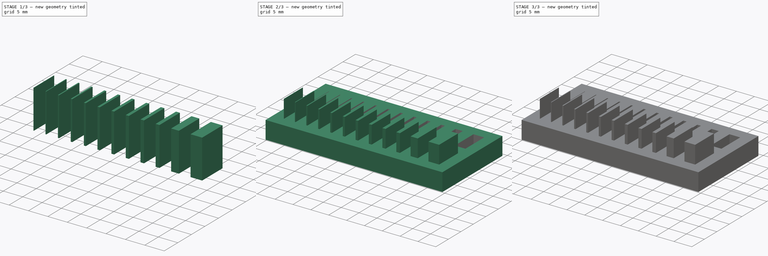
[diagram: build sequence overview — one tinted view per stage of 3, left to right]
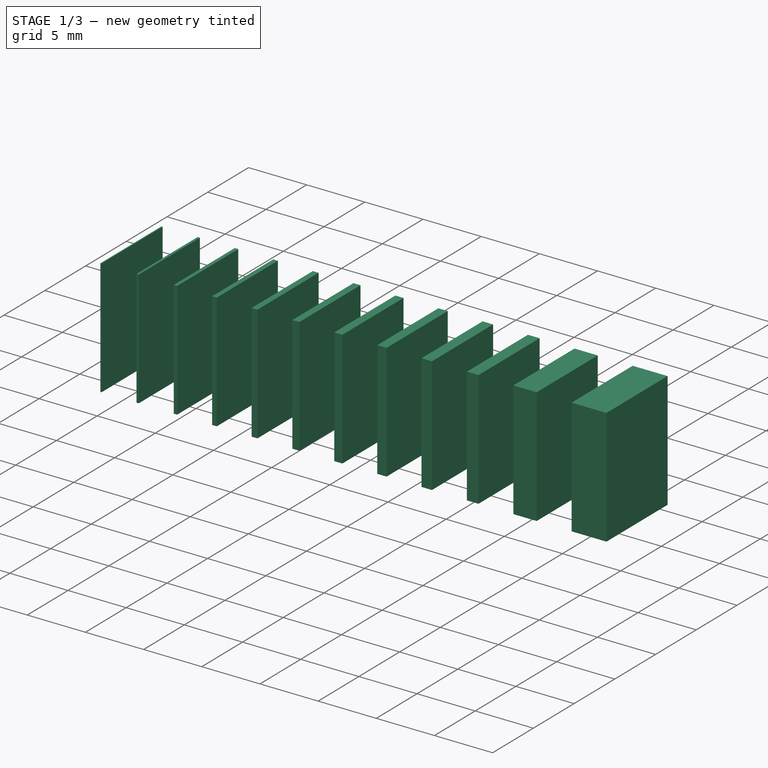
[diagram: stage 1 of 3 — iso view after this stage's code; geometry added in this stage tinted green]
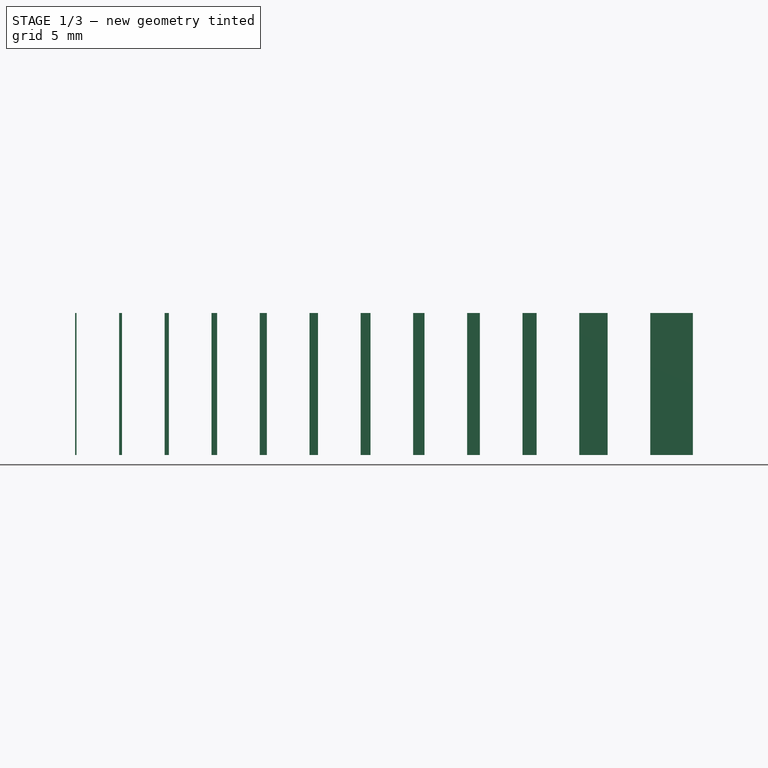
[diagram: stage 1 of 3 — front view after this stage's code; geometry added in this stage tinted green]
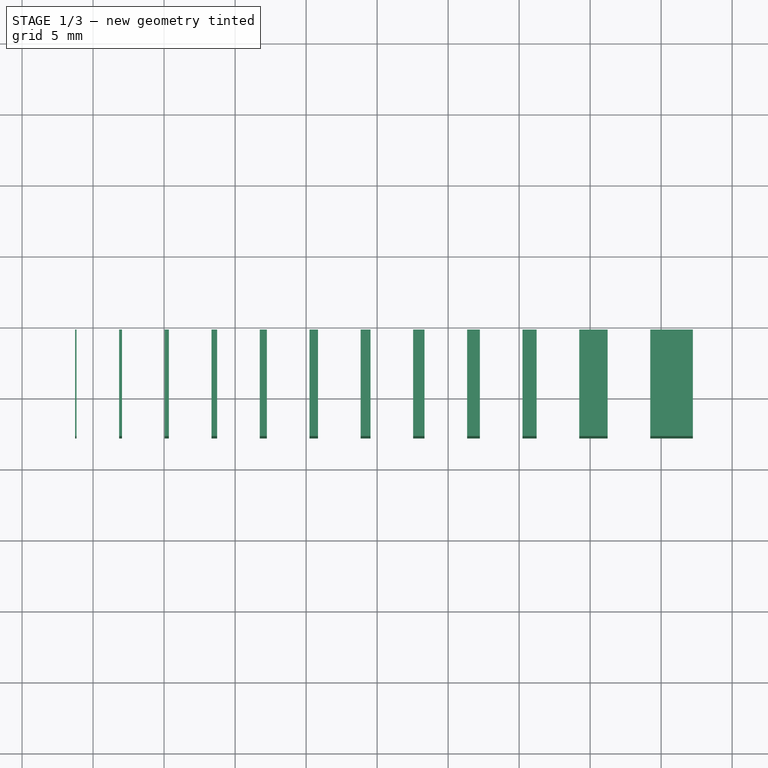
[diagram: stage 1 of 3 — top view after this stage's code; geometry added in this stage tinted green]
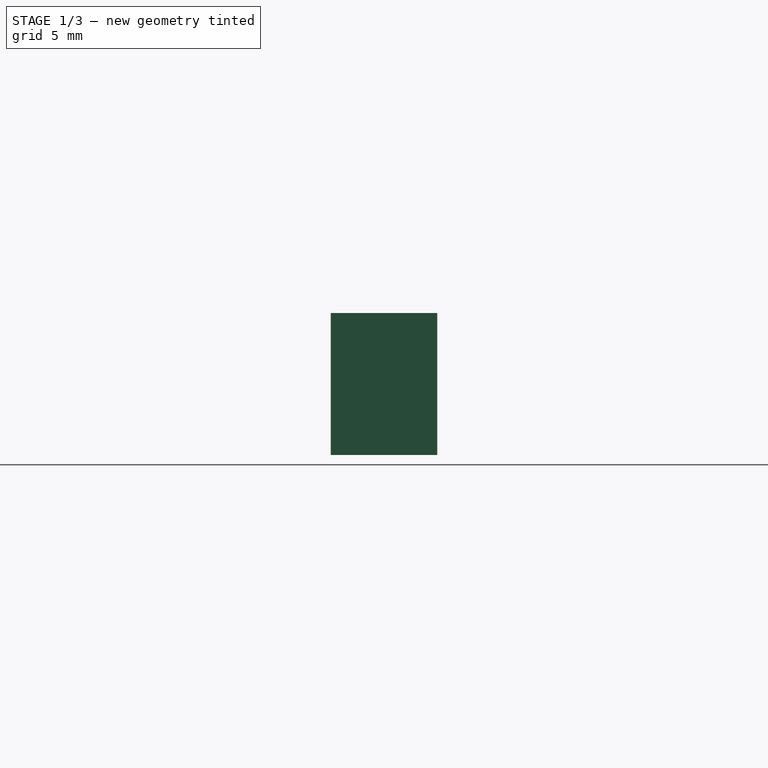
[diagram: stage 1 of 3 — right view after this stage's code; geometry added in this stage tinted green]
FCSTD DOCUMENT  (FreeCAD 0.18.3R)
Label: thickness
License: All rights reserved
LicenseURL: http://en.wikipedia.org/wiki/All_rights_reserved
objects: Part::Extrusion×3, Sketcher::SketchObject×2, Part::Cut×2, Part::Fuse×1, Part::FeaturePython×1, Part::Part2DObjectPython×1
note: 10 computed .brp shape members not serialized (recipe doc carries the construction recipe); baked Part::Feature solids carry a one-line shape summary decoded from their .brp

FEATURE [Part::Extrusion] Extrude001  label="walls"
  Base = -> Sketch
  Dir = (0,0,1)
  DirMode = 2
  FaceMakerClass = Part::FaceMakerBullseye
  LengthFwd = 10
  LengthRev = 0
  Solid = true
  Symmetric = false
FEATURE [Part::FeaturePython] Clone  label="cuts"  # Draft clone (typed FeaturePython)
  AttacherType = Attacher::AttachEngine3D
  Fuse = false
  Objects = -> [Extrude001]
  Placement = pos=(0,10.5,0) rot=(0,0,1;0rad)
  Scale = (1,1,1)
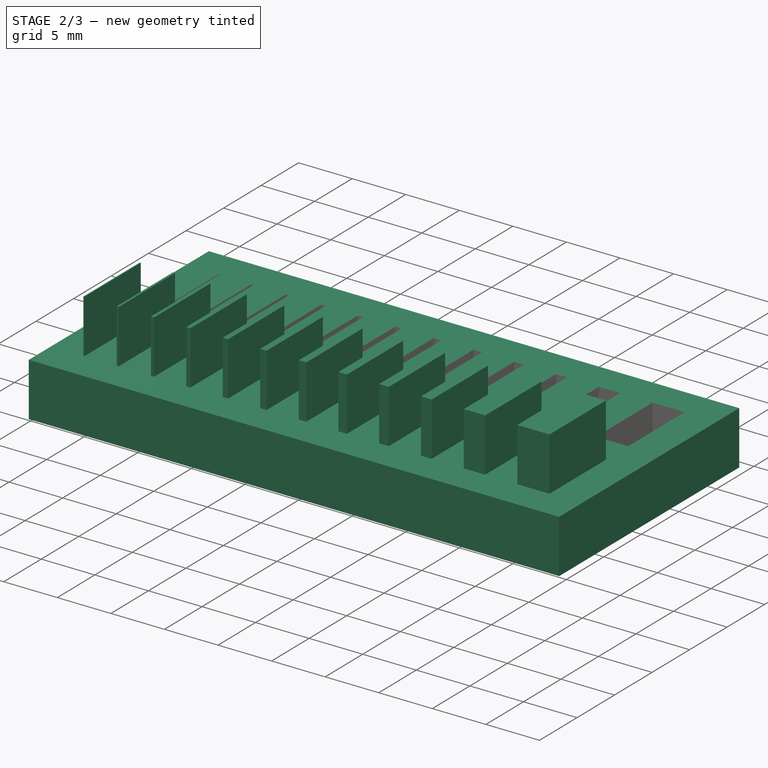
[diagram: stage 2 of 3 — iso view after this stage's code; geometry added in this stage tinted green]
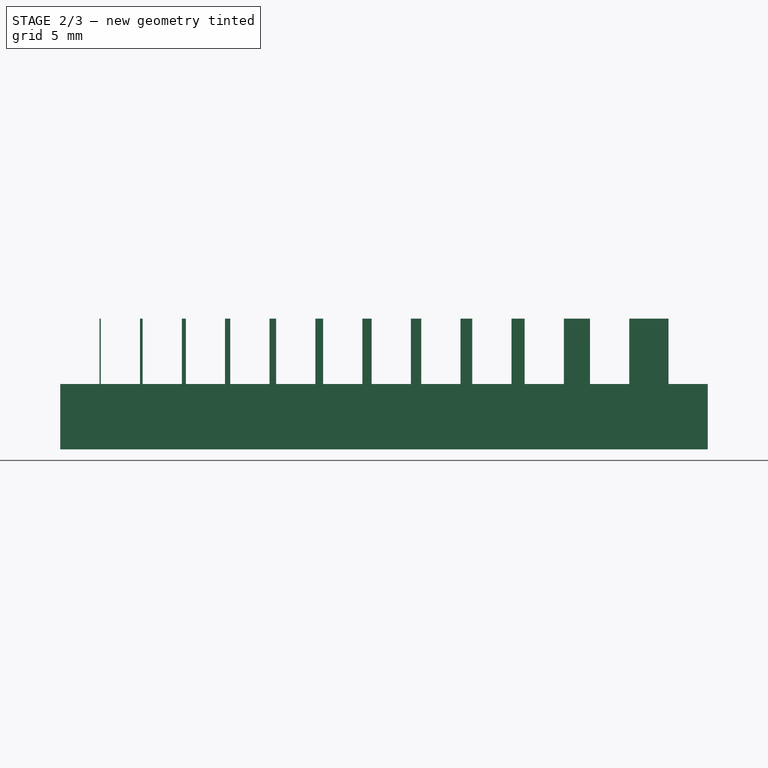
[diagram: stage 2 of 3 — front view after this stage's code; geometry added in this stage tinted green]
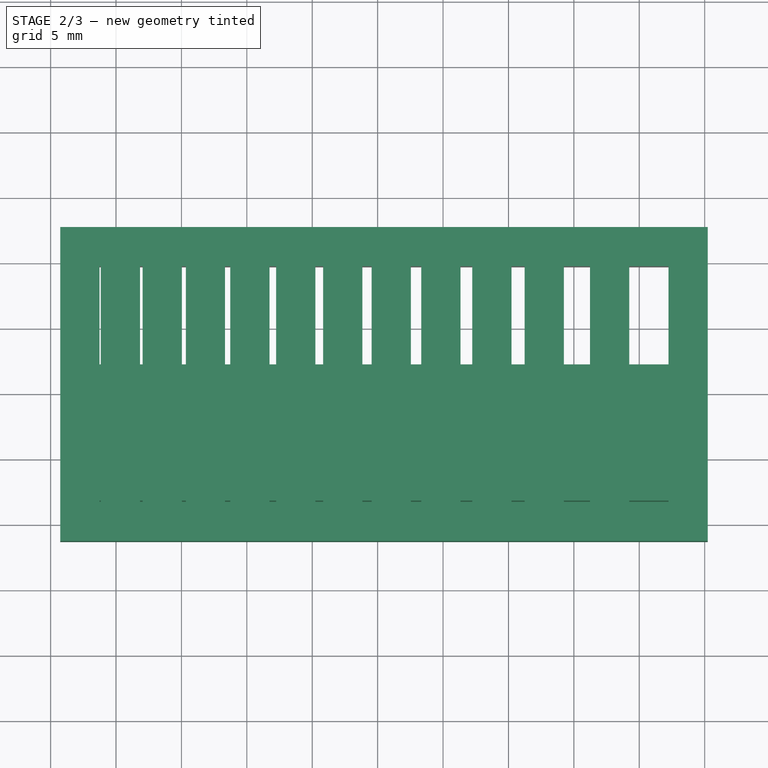
[diagram: stage 2 of 3 — top view after this stage's code; geometry added in this stage tinted green]
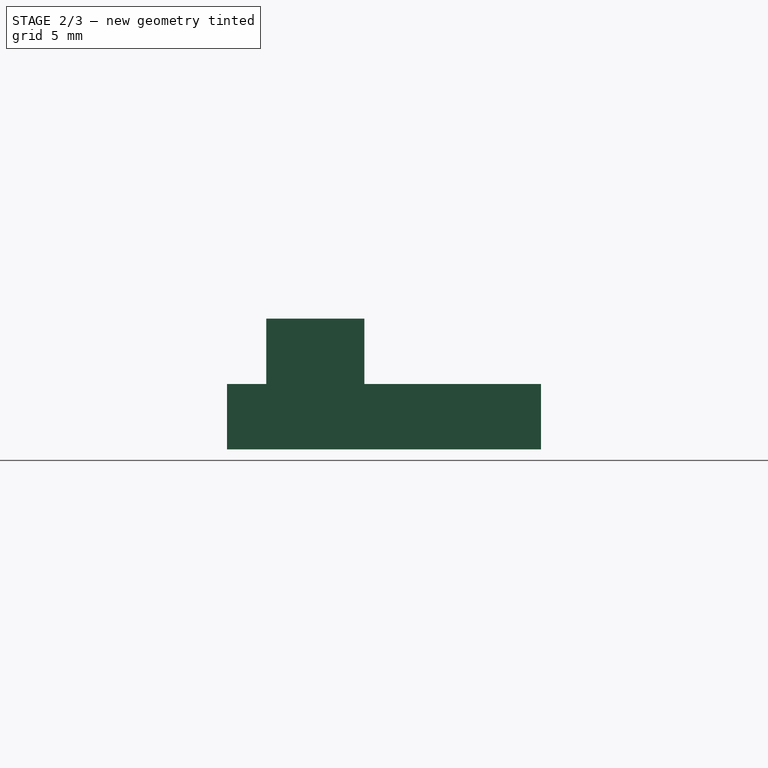
[diagram: stage 2 of 3 — right view after this stage's code; geometry added in this stage tinted green]
FEATURE [Sketcher::SketchObject] Sketch  label="walls sketch"
  sketch-geometry (48):
    g0: LineSegment StartX=-15.7646 StartY=14.21 StartZ=0 EndX=-12.7646 EndY=14.21 EndZ=0
    g1: LineSegment StartX=-12.7646 StartY=14.21 StartZ=0 EndX=-12.7646 EndY=6.70998 EndZ=0
    g2: LineSegment StartX=-12.7646 StartY=6.70998 StartZ=0 EndX=-15.7646 EndY=6.70998 EndZ=0
    g3: LineSegment StartX=-15.7646 StartY=6.70998 StartZ=0 EndX=-15.7646 EndY=14.21 EndZ=0
    g4: LineSegment StartX=-20.7646 StartY=14.21 StartZ=0 EndX=-18.7646 EndY=14.21 EndZ=0
    g5: LineSegment StartX=-18.7646 StartY=14.21 StartZ=0 EndX=-18.7646 EndY=6.70998 EndZ=0
    g6: LineSegment StartX=-18.7646 StartY=6.70998 StartZ=0 EndX=-20.7646 EndY=6.70998 EndZ=0
    g7: LineSegment StartX=-20.7646 StartY=6.70998 StartZ=0 EndX=-20.7646 EndY=14.21 EndZ=0
    g8: LineSegment StartX=-24.7646 StartY=14.21 StartZ=0 EndX=-23.7646 EndY=14.21 EndZ=0
    g9: LineSegment StartX=-23.7646 StartY=14.21 StartZ=0 EndX=-23.7646 EndY=6.70998 EndZ=0
    g10: LineSegment StartX=-23.7646 StartY=6.70998 StartZ=0 EndX=-24.7646 EndY=6.70998 EndZ=0
    g11: LineSegment StartX=-24.7646 StartY=6.70998 StartZ=0 EndX=-24.7646 EndY=14.21 EndZ=0
    g12: LineSegment StartX=-28.6646 StartY=14.21 StartZ=0 EndX=-27.7646 EndY=14.21 EndZ=0
    g13: LineSegment StartX=-27.7646 StartY=14.21 StartZ=0 EndX=-27.7646 EndY=6.70998 EndZ=0
    g14: LineSegment StartX=-27.7646 StartY=6.70998 StartZ=0 EndX=-28.6646 EndY=6.70998 EndZ=0
    g15: LineSegment StartX=-28.6646 StartY=6.70998 StartZ=0 EndX=-28.6646 EndY=14.21 EndZ=0
    g16: LineSegment StartX=-32.4646 StartY=14.21 StartZ=0 EndX=-31.6646 EndY=14.21 EndZ=0
    g17: LineSegment StartX=-31.6646 StartY=14.21 StartZ=0 EndX=-31.6646 EndY=6.70998 EndZ=0
    g18: LineSegment StartX=-31.6646 StartY=6.70998 StartZ=0 EndX=-32.4646 EndY=6.70998 EndZ=0
    g19: LineSegment StartX=-32.4646 StartY=6.70998 StartZ=0 EndX=-32.4646 EndY=14.21 EndZ=0
    g20: LineSegment StartX=-36.1646 StartY=14.21 StartZ=0 EndX=-35.4646 EndY=14.21 EndZ=0
    g21: LineSegment StartX=-35.4646 StartY=14.21 StartZ=0 EndX=-35.4646 EndY=6.70998 EndZ=0
    g22: LineSegment StartX=-35.4646 StartY=6.70998 StartZ=0 EndX=-36.1646 EndY=6.70998 EndZ=0
    g23: LineSegment StartX=-36.1646 StartY=6.70998 StartZ=0 EndX=-36.1646 EndY=14.21 EndZ=0
    g24: LineSegment StartX=-39.7646 StartY=14.21 StartZ=0 EndX=-39.1646 EndY=14.21 EndZ=0
    g25: LineSegment StartX=-39.1646 StartY=14.21 StartZ=0 EndX=-39.1646 EndY=6.70998 EndZ=0
    g26: LineSegment StartX=-39.1646 StartY=6.70998 StartZ=0 EndX=-39.7646 EndY=6.70998 EndZ=0
    g27: LineSegment StartX=-39.7646 StartY=6.70998 StartZ=0 EndX=-39.7646 EndY=14.21 EndZ=0
    g28: LineSegment StartX=-43.2646 StartY=14.21 StartZ=0 EndX=-42.7646 EndY=14.21 EndZ=0
    g29: LineSegment StartX=-42.7646 StartY=14.21 StartZ=0 EndX=-42.7646 EndY=6.70998 EndZ=0
    g30: LineSegment StartX=-42.7646 StartY=6.70998 StartZ=0 EndX=-43.2646 EndY=6.70998 EndZ=0
    g31: LineSegment StartX=-43.2646 StartY=6.70998 StartZ=0 EndX=-43.2646 EndY=14.21 EndZ=0
    g32: LineSegment StartX=-46.6646 StartY=14.21 StartZ=0 EndX=-46.2646 EndY=14.21 EndZ=0
    g33: LineSegment StartX=-46.2646 StartY=14.21 StartZ=0 EndX=-46.2646 EndY=6.70998 EndZ=0
    g34: LineSegment StartX=-46.2646 StartY=6.70998 StartZ=0 EndX=-46.6646 EndY=6.70998 EndZ=0
    g35: LineSegment StartX=-46.6646 StartY=6.70998 StartZ=0 EndX=-46.6646 EndY=14.21 EndZ=0
    g36: LineSegment StartX=-49.9646 StartY=14.21 StartZ=0 EndX=-49.6646 EndY=14.21 EndZ=0
    g37: LineSegment StartX=-49.6646 StartY=14.21 StartZ=0 EndX=-49.6646 EndY=6.70998 EndZ=0
    g38: LineSegment StartX=-49.6646 StartY=6.70998 StartZ=0 EndX=-49.9646 EndY=6.70998 EndZ=0
    g39: LineSegment StartX=-49.9646 StartY=6.70998 StartZ=0 EndX=-49.9646 EndY=14.21 EndZ=0
    g40: LineSegment StartX=-53.1646 StartY=14.21 StartZ=0 EndX=-52.9646 EndY=14.21 EndZ=0
    g41: LineSegment StartX=-52.9646 StartY=14.21 StartZ=0 EndX=-52.9646 EndY=6.70998 EndZ=0
    g42: LineSegment StartX=-52.9646 StartY=6.70998 StartZ=0 EndX=-53.1646 EndY=6.70998 EndZ=0
    g43: LineSegment StartX=-53.1646 StartY=6.70998 StartZ=0 EndX=-53.1646 EndY=14.21 EndZ=0
    g44: LineSegment StartX=-56.2646 StartY=14.21 StartZ=0 EndX=-56.1646 EndY=14.21 EndZ=0
    g45: LineSegment StartX=-56.1646 StartY=14.21 StartZ=0 EndX=-56.1646 EndY=6.70998 EndZ=0
    g46: LineSegment StartX=-56.1646 StartY=6.70998 StartZ=0 EndX=-56.2646 EndY=6.70998 EndZ=0
    g47: LineSegment StartX=-56.2646 StartY=6.70998 StartZ=0 EndX=-56.2646 EndY=14.21 EndZ=0
  constraints (142):
    c: Coincident(g0,g1)
    c: Coincident(g1,g2)
    c: Coincident(g2,g3)
    c: Coincident(g3,g0)
    c: Horizontal(g0)
    c: Horizontal(g2)
    c: Vertical(g1)
    c: Vertical(g3)
    c: DistanceX(g0,g0) = 3
    c: Coincident(g4,g5)
    c: Coincident(g5,g6)
    c: Coincident(g6,g7)
    c: Coincident(g7,g4)
    c: Horizontal(g4)
    c: Horizontal(g6)
    c: Vertical(g5)
    c: Vertical(g7)
    c: Horizontal(g4,g0)
    c: Equal(g5,g1)
    c: DistanceX(g4,g0) = 3
    c: DistanceX(g4,g4) = 2
    c: Coincident(g8,g9)
    c: Coincident(g9,g10)
    c: Coincident(g10,g11)
    c: Coincident(g11,g8)
    c: Horizontal(g8)
    c: Horizontal(g10)
    c: Vertical(g9)
    c: Vertical(g11)
    c: Horizontal(g8,g4)
    c: Equal(g9,g5)
    c: DistanceX(g8,g4) = 3
    c: DistanceX(g8,g8) = 1
    c: Coincident(g12,g13)
    c: Coincident(g13,g14)
    c: Coincident(g14,g15)
    c: Coincident(g15,g12)
    c: Horizontal(g12)
    c: Horizontal(g14)
    c: Vertical(g13)
    c: Vertical(g15)
    c: Horizontal(g12,g8)
    c: Equal(g13,g9)
    c: DistanceX(g12,g8) = 3
    c: DistanceX(g12,g12) = 0.9
    c: Coincident(g16,g17)
    c: Coincident(g17,g18)
    c: Coincident(g18,g19)
    c: Coincident(g19,g16)
    c: Horizontal(g16)
    c: Horizontal(g18)
    c: Vertical(g17)
    c: Vertical(g19)
    c: Horizontal(g16,g12)
    c: DistanceX(g16,g12) = 3
    c: Equal(g17,g13)
    c: DistanceX(g16,g16) = 0.8
    c: Coincident(g20,g21)
    c: Coincident(g21,g22)
    c: Coincident(g22,g23)
    c: Coincident(g23,g20)
    c: Horizontal(g20)
    c: Horizontal(g22)
    c: Vertical(g21)
    c: Vertical(g23)
    c: Horizontal(g20,g16)
    c: Equal(g21,g17)
    c: DistanceX(g20,g16) = 3
    c: DistanceX(g20,g20) = 0.7
    c: DistanceY(g1,g0) = 7.5
    c: Coincident(g24,g25)
    c: Coincident(g25,g26)
    c: Coincident(g26,g27)
    c: Coincident(g27,g24)
    c: Horizontal(g24)
    c: Horizontal(g26)
    c: Vertical(g25)
    c: Vertical(g27)
    c: Horizontal(g24,g20)
    c: Equal(g25,g21)
    c: DistanceX(g24,g20) = 3
    c: DistanceX(g24,g24) = 0.6
    c: Coincident(g28,g29)
    c: Coincident(g29,g30)
    c: Coincident(g30,g31)
    c: Coincident(g31,g28)
    c: Horizontal(g28)
    c: Horizontal(g30)
    c: Vertical(g29)
    c: Vertical(g31)
    c: Horizontal(g28,g24)
    c: DistanceX(g28,g24) = 3
    c: Equal(g29,g25)
    c: DistanceX(g28,g28) = 0.5
    c: Coincident(g32,g33)
    c: Coincident(g33,g34)
    c: Coincident(g34,g35)
    c: Coincident(g35,g32)
    c: Horizontal(g32)
    c: Horizontal(g34)
    c: Vertical(g33)
    c: Vertical(g35)
    c: Coincident(g36,g37)
    c: Coincident(g37,g38)
    c: Coincident(g38,g39)
    c: Coincident(g39,g36)
    c: Horizontal(g36)
    c: Horizontal(g38)
    c: Vertical(g37)
    c: Vertical(g39)
    c: Coincident(g40,g41)
    c: Coincident(g41,g42)
    c: Coincident(g42,g43)
    c: Coincident(g43,g40)
    c: Horizontal(g40)
    c: Horizontal(g42)
    c: Vertical(g41)
    c: Vertical(g43)
    c: Coincident(g44,g45)
    c: Coincident(g45,g46)
    c: Coincident(g46,g47)
    c: Coincident(g47,g44)
    c: Horizontal(g44)
    c: Horizontal(g46)
    c: Vertical(g45)
    c: Vertical(g47)
    c: Horizontal(g32,g28)
    c: Horizontal(g36,g32)
    c: Horizontal(g40,g36)
    c: Horizontal(g44,g40)
    c: Equal(g33,g29)
    c: Equal(g37,g33)
    c: Equal(g41,g37)
    c: Equal(g45,g41)
    c: DistanceX(g33,g28) = 3
    c: DistanceX(g36,g32) = 3
    c: DistanceX(g40,g36) = 3
    c: DistanceX(g44,g40) = 3
    c: DistanceX(g32,g32) = 0.4
    c: DistanceX(g36,g36) = 0.3
    c: DistanceX(g40,g40) = 0.2
    c: DistanceX(g44,g44) = 0.1
FEATURE [Sketcher::SketchObject] Sketch002  label="border"
  ExternalGeometry = -> [Sketch]
  expr: Constraints[10] = 3 + 7.5 + 3 + 7.5
  sketch-geometry (4):
    g0: LineSegment StartX=-59.2646 StartY=27.71 StartZ=0 EndX=-9.76456 EndY=27.71 EndZ=0
    g1: LineSegment StartX=-9.76456 StartY=27.71 StartZ=0 EndX=-9.76456 EndY=3.70998 EndZ=0
    g2: LineSegment StartX=-9.76456 StartY=3.70998 StartZ=0 EndX=-59.2646 EndY=3.70998 EndZ=0
    g3: LineSegment StartX=-59.2646 StartY=3.70998 StartZ=0 EndX=-59.2646 EndY=27.71 EndZ=0
  constraints (11):
    c: Coincident(g0,g1)
    c: Coincident(g1,g2)
    c: Coincident(g2,g3)
    c: Coincident(g3,g0)
    c: Horizontal(g0)
    c: Horizontal(g2)
    c: Vertical(g3)
    c: DistanceX(g2,g-4) = 3
    c: DistanceY(g2,g-4) = 3
    c: DistanceX(g-5,g1) = 3
    c: DistanceY(g-5,g0) = 21
FEATURE [Part::Extrusion] Extrude  label="base"
  Base = -> Sketch002
  Dir = (0,0,1)
  DirMode = 2
  FaceMakerClass = Part::FaceMakerBullseye
  LengthFwd = 5
  LengthRev = 0
  Solid = true
  Symmetric = false
FEATURE [Part::Fuse] Fusion
  Base = -> Extrude
  Tool = -> Extrude001
FEATURE [Part::Cut] Cut
  Base = -> Fusion
  Tool = -> Clone
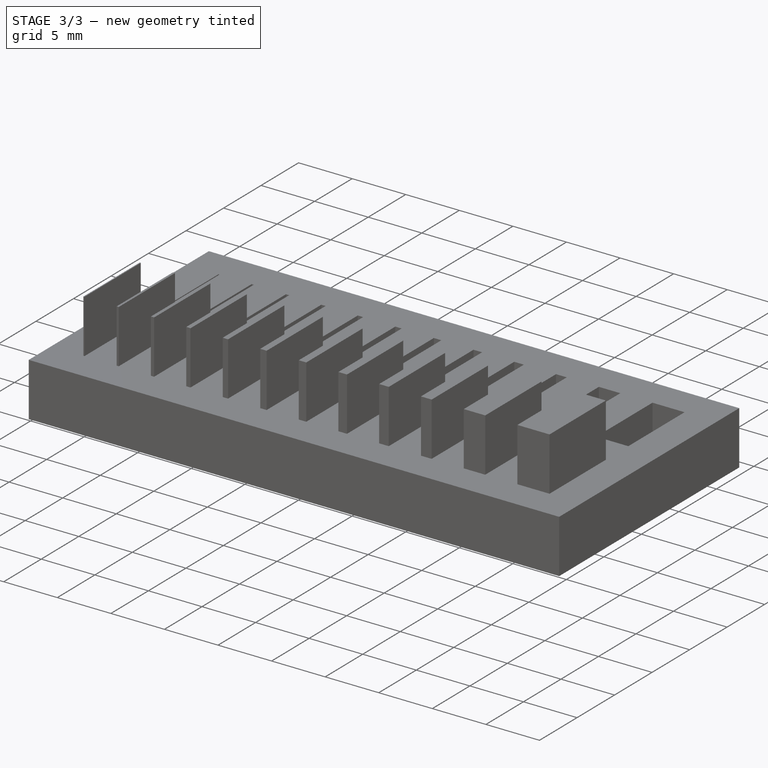
[diagram: stage 3 of 3 — iso view after this stage's code; geometry added in this stage tinted green]
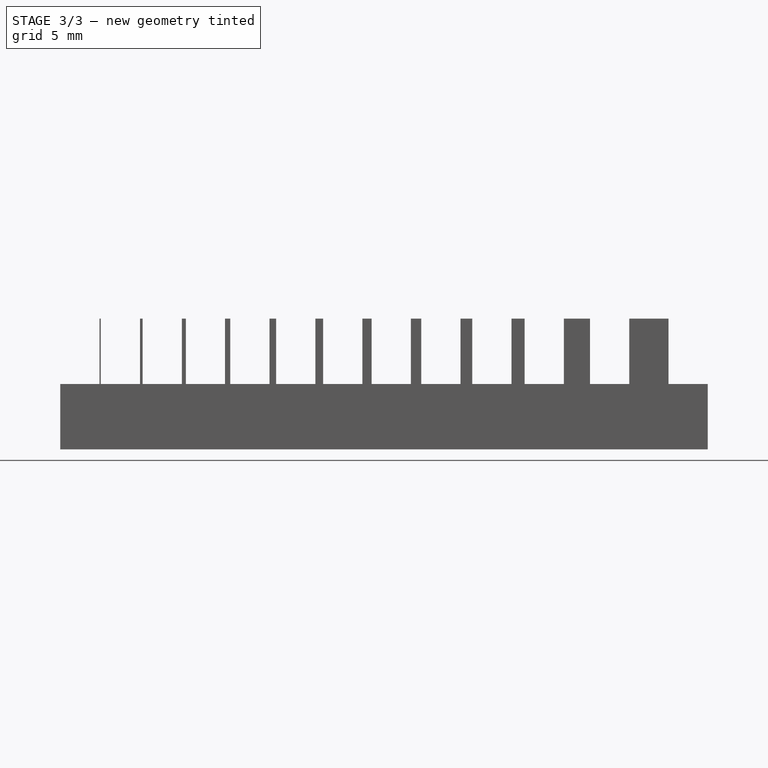
[diagram: stage 3 of 3 — front view after this stage's code; geometry added in this stage tinted green]
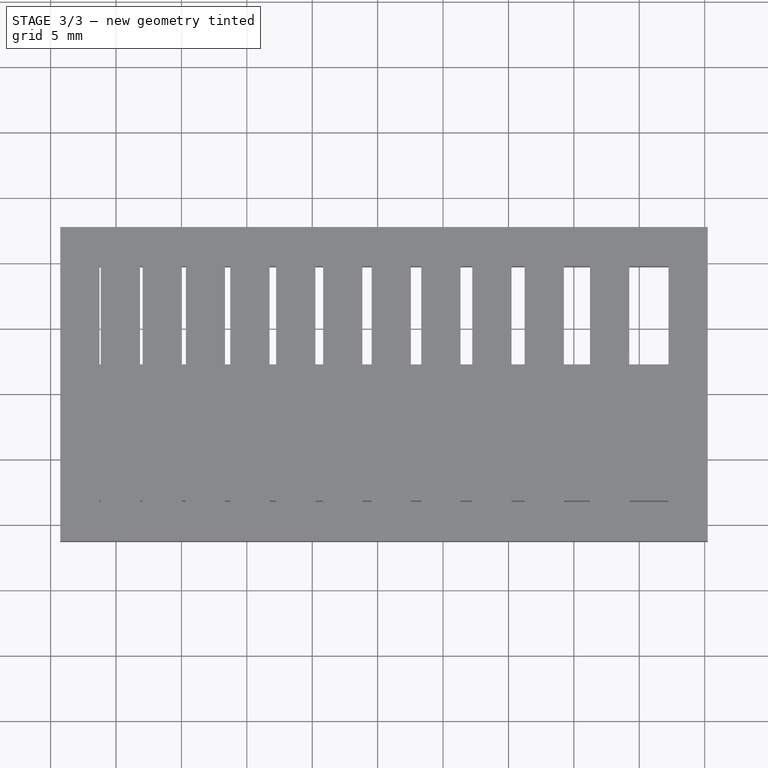
[diagram: stage 3 of 3 — top view after this stage's code; geometry added in this stage tinted green]
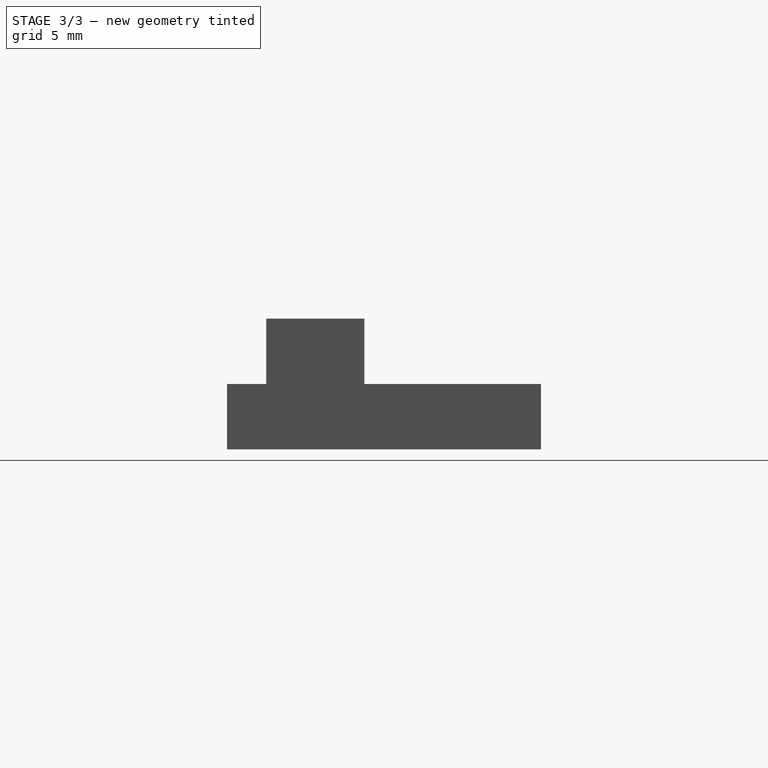
[diagram: stage 3 of 3 — right view after this stage's code; geometry added in this stage tinted green]
FEATURE [Part::Part2DObjectPython] ShapeString  # Draft 2D object (typed FeaturePython)
  FontFile = <userpath>/git/aws2/bin/fonts/Arial Bold.ttf
  Placement = pos=(-13,28,0.75) rot=(0,0.707107,0.707107;3.14159rad)
  Size = 3.5
  String = 3 2 1.9.8.7.6.5.4.3.2.1
  Support = -> [Cut]
  Tracking = 0
FEATURE [Part::Extrusion] Extrude002
  Base = -> ShapeString
  Dir = (1e-16,1,0)
  DirMode = 2
  FaceMakerClass = Part::FaceMakerBullseye
  LengthFwd = -1
  LengthRev = 0
  Solid = false
  Symmetric = false
FEATURE [Part::Cut] Cut001
  Base = -> Cut
  Tool = -> Extrude002
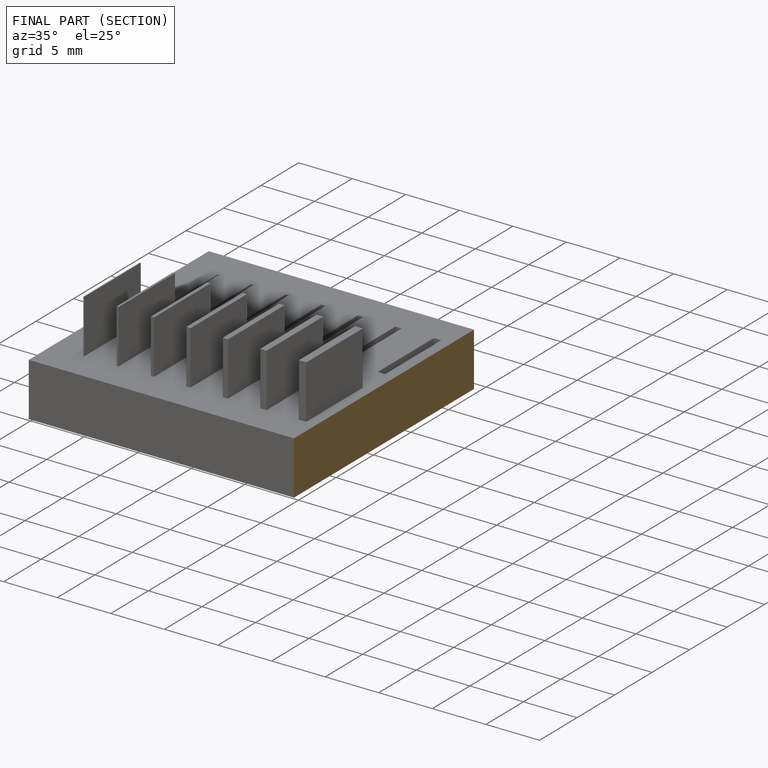
[diagram: finished part — half-section view (interior)]
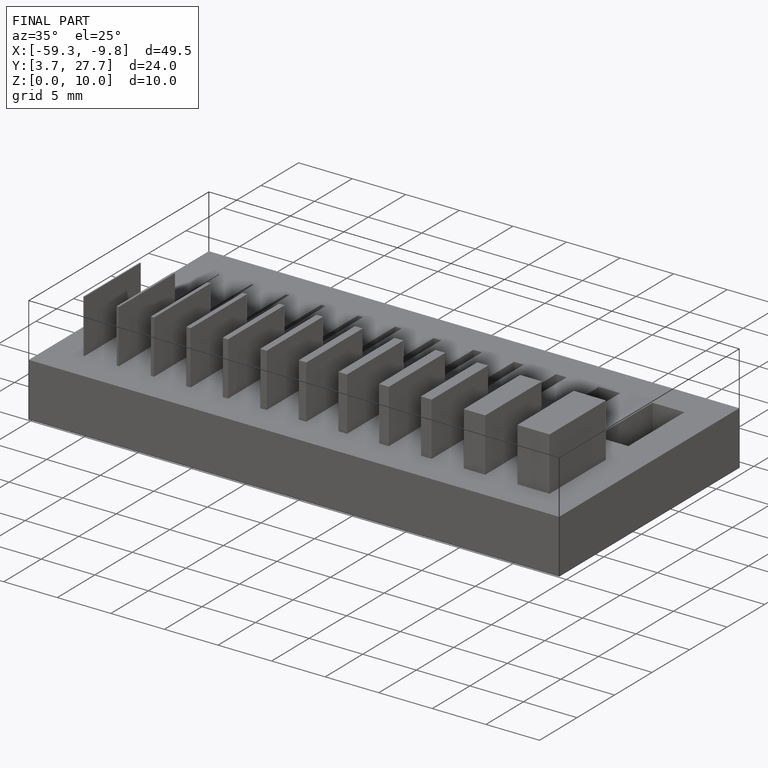
[diagram: finished part — iso view with bounding-box wireframe]
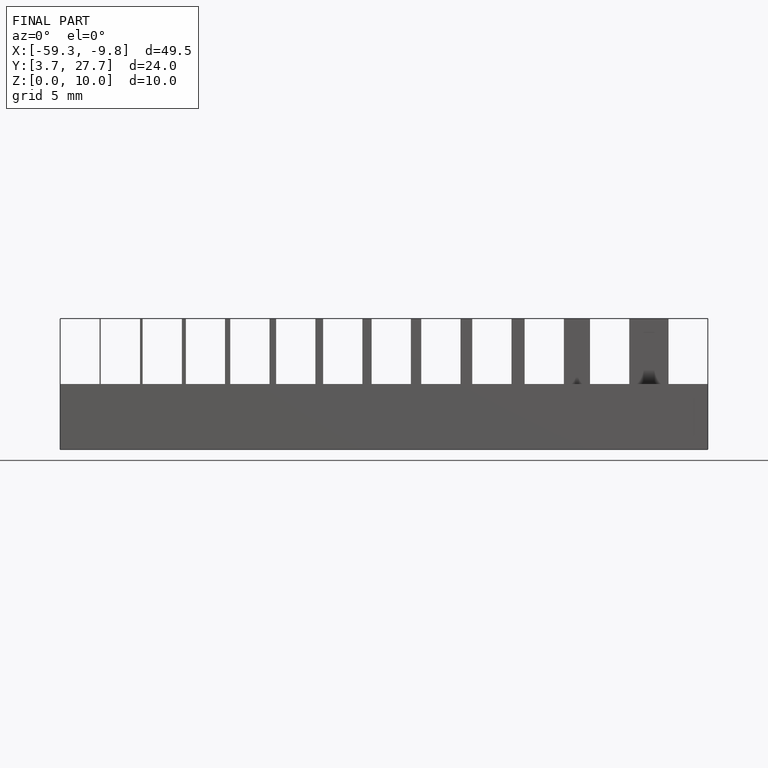
[diagram: finished part — front view with bounding-box wireframe]
